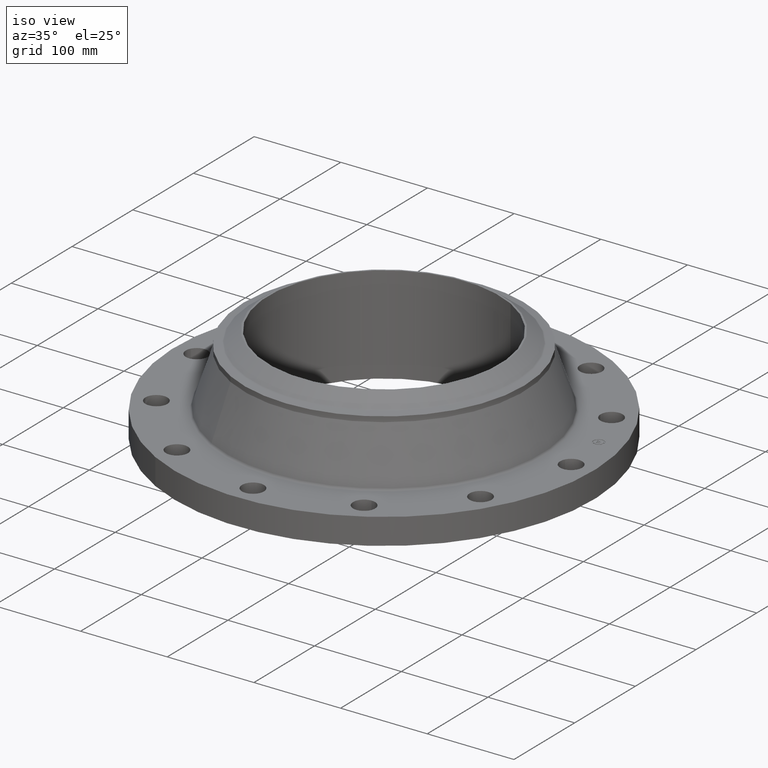
[diagram: clean part render]
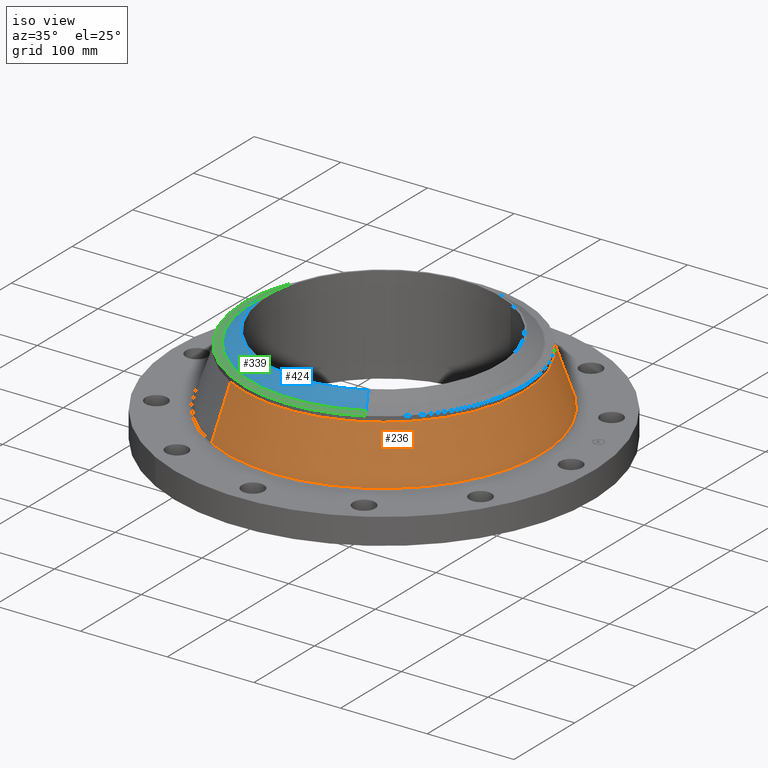
[diagram: same view with three faces highlighted in distinct colors, each labeled with its STEP entity id]
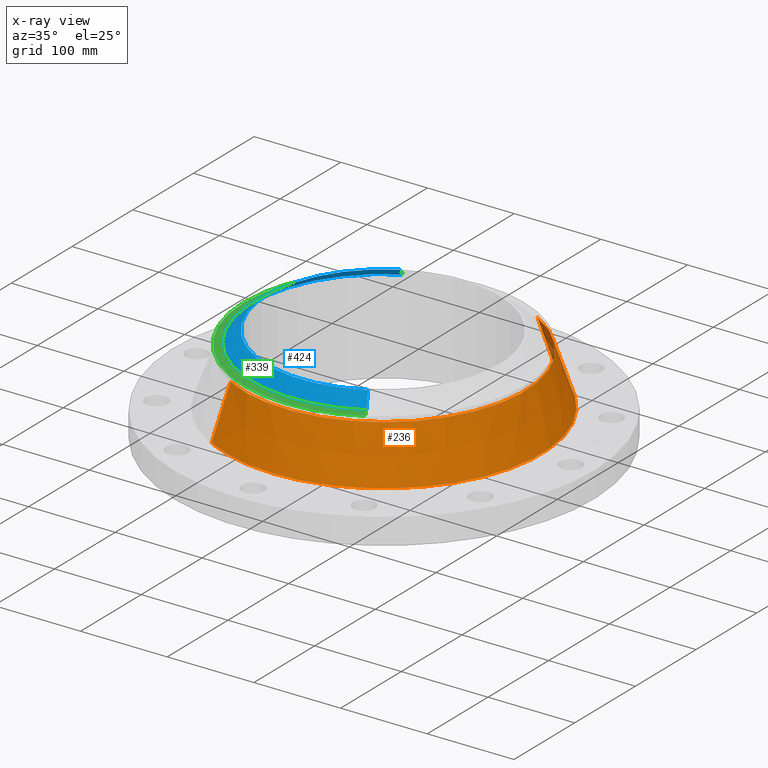
[diagram: x-ray of the same camera — body ghosted, the three highlighted faces saturated]
A machine part, iso view with three faces highlighted in distinct colors.
The next image is the same camera in x-ray (body ghosted, the three faces saturated) — at least one of them is partly hidden behind the body in this view.
Their STEP definitions:

[orange] entity #236 — the highlighted conical surface has half-angle 18.514 deg.
#172=AXIS2_PLACEMENT_3D('Circle Axis2P3D',#170,#171,$) ;
#209=AXIS2_PLACEMENT_3D('Cone Axis2P3D',#206,#207,#208) ;
#220=AXIS2_PLACEMENT_3D('Circle Axis2P3D',#218,#219,$) ;
#167=CARTESIAN_POINT('Vertex',(3.43392160501,6.2857513353,1.27189482998)) ;
#170=CARTESIAN_POINT('Axis2P3D Location',(0.,0.,1.27189482998)) ;
#174=CARTESIAN_POINT('Vertex',(-3.43392160501,-6.2857513353,1.27189482998)) ;
#206=CARTESIAN_POINT('Axis2P3D Location',(0.,0.,3.62374450254)) ;
#211=CARTESIAN_POINT('Line Origine',(3.24512970681,5.94017008369,2.44781966626)) ;
#215=CARTESIAN_POINT('Vertex',(3.05633780861,5.59458883207,3.62374450254)) ;
#218=CARTESIAN_POINT('Axis2P3D Location',(0.,0.,3.62374450254)) ;
#222=CARTESIAN_POINT('Vertex',(-3.05633780861,-5.59458883207,3.62374450254)) ;
#225=CARTESIAN_POINT('Line Origine',(-3.24512970681,-5.94017008369,2.44781966626)) ;
#171=DIRECTION('Axis2P3D Direction',(0.,0.,-0.0393700787402)) ;
#207=DIRECTION('Axis2P3D Direction',(0.,0.,-0.0393700787402)) ;
#208=DIRECTION('Axis2P3D XDirection',(-0.0188750212049,-0.0345504945626,0.)) ;
#212=DIRECTION('Vector Direction',(0.0059936324354,0.0109712705815,-0.0373324348531)) ;
#219=DIRECTION('Axis2P3D Direction',(0.,0.,-0.0393700787402)) ;
#226=DIRECTION('Vector Direction',(-0.0059936324354,-0.0109712705815,-0.0373324348531)) ;
#213=VECTOR('Line Direction',#212,0.0393700787402) ;
#227=VECTOR('Line Direction',#226,0.0393700787402) ;
#231=ORIENTED_EDGE('',*,*,#176,.F.) ;
#232=ORIENTED_EDGE('',*,*,#217,.T.) ;
#233=ORIENTED_EDGE('',*,*,#224,.T.) ;
#234=ORIENTED_EDGE('',*,*,#229,.F.) ;
#236=ADVANCED_FACE('PartBody',(#235),#210,.T.) ;
#173=CIRCLE('generated circle',#172,7.16257547524) ;
#221=CIRCLE('generated circle',#220,6.37500000003) ;
#210=CONICAL_SURFACE('Cone',#209,6.37500000003,0.323137341784) ;
#176=EDGE_CURVE('',#168,#175,#173,.T.) ;
#217=EDGE_CURVE('',#168,#216,#214,.F.) ;
#224=EDGE_CURVE('',#216,#223,#221,.T.) ;
#229=EDGE_CURVE('',#175,#223,#228,.F.) ;
#230=EDGE_LOOP('',(#231,#232,#233,#234)) ;
#235=FACE_OUTER_BOUND('',#230,.T.) ;
#214=LINE('Line',#211,#213) ;
#228=LINE('Line',#225,#227) ;
#168=VERTEX_POINT('',#167) ;
#175=VERTEX_POINT('',#174) ;
#216=VERTEX_POINT('',#215) ;
#223=VERTEX_POINT('',#222) ;

[blue] entity #424 — the highlighted conical surface has half-angle 52.5 deg.
#343=AXIS2_PLACEMENT_3D('Cone Axis2P3D',#340,#341,#342) ;
#387=AXIS2_PLACEMENT_3D('Circle Axis2P3D',#385,#386,$) ;
#415=AXIS2_PLACEMENT_3D('Circle Axis2P3D',#413,#414,$) ;
#340=CARTESIAN_POINT('Axis2P3D Location',(0.,0.,4.44000000002)) ;
#349=CARTESIAN_POINT('Vertex',(2.55473412009,-4.67640943907,4.44000000002)) ;
#351=CARTESIAN_POINT('Vertex',(-2.55473412009,4.67640943907,4.44000000002)) ;
#354=CARTESIAN_POINT('Line Origine',(2.70967542264,-4.96002759097,4.19201437258)) ;
#358=CARTESIAN_POINT('Vertex',(2.86461672519,-5.24364574288,3.94402874515)) ;
#365=CARTESIAN_POINT('Vertex',(-2.86461672519,5.24364574288,3.94402874515)) ;
#368=CARTESIAN_POINT('Line Origine',(-2.70967542264,4.96002759097,4.19201437258)) ;
#385=CARTESIAN_POINT('Axis2P3D Location',(0.,0.,4.44000000002)) ;
#413=CARTESIAN_POINT('Axis2P3D Location',(0.,0.,3.94402874515)) ;
#341=DIRECTION('Axis2P3D Direction',(-0.,-0.,-0.0393700787402)) ;
#342=DIRECTION('Axis2P3D XDirection',(0.0188750212049,-0.0345504945626,0.)) ;
#355=DIRECTION('Vector Direction',(0.014974561121,-0.02741075027,-0.023966985394)) ;
#369=DIRECTION('Vector Direction',(-0.014974561121,0.02741075027,-0.023966985394)) ;
#386=DIRECTION('Axis2P3D Direction',(0.,0.,-0.0393700787402)) ;
#414=DIRECTION('Axis2P3D Direction',(0.,0.,-0.0393700787402)) ;
#356=VECTOR('Line Direction',#355,0.0393700787402) ;
#370=VECTOR('Line Direction',#369,0.0393700787402) ;
#419=ORIENTED_EDGE('',*,*,#389,.F.) ;
#420=ORIENTED_EDGE('',*,*,#372,.T.) ;
#421=ORIENTED_EDGE('',*,*,#417,.T.) ;
#422=ORIENTED_EDGE('',*,*,#360,.F.) ;
#424=ADVANCED_FACE('PartBody',(#423),#344,.T.) ;
#388=CIRCLE('generated circle',#387,5.3287401575) ;
#416=CIRCLE('generated circle',#415,5.97510248105) ;
#344=CONICAL_SURFACE('Cone',#343,5.3287401575,0.916297857297) ;
#360=EDGE_CURVE('',#350,#359,#357,.T.) ;
#372=EDGE_CURVE('',#352,#366,#371,.T.) ;
#389=EDGE_CURVE('',#352,#350,#388,.F.) ;
#417=EDGE_CURVE('',#366,#359,#416,.F.) ;
#418=EDGE_LOOP('',(#419,#420,#421,#422)) ;
#423=FACE_OUTER_BOUND('',#418,.T.) ;
#357=LINE('Line',#354,#356) ;
#371=LINE('Line',#368,#370) ;
#350=VERTEX_POINT('',#349) ;
#352=VERTEX_POINT('',#351) ;
#359=VERTEX_POINT('',#358) ;
#366=VERTEX_POINT('',#365) ;

[green] entity #339 — the highlighted conical surface has half-angle 80 deg.
#277=AXIS2_PLACEMENT_3D('Circle Axis2P3D',#275,#276,$) ;
#290=AXIS2_PLACEMENT_3D('Circle Axis2P3D',#288,#289,$) ;
#311=AXIS2_PLACEMENT_3D('Cone Axis2P3D',#308,#309,#310) ;
#322=AXIS2_PLACEMENT_3D('Circle Axis2P3D',#320,#321,$) ;
#258=CARTESIAN_POINT('Vertex',(-3.05633780861,-5.59458883207,3.85996497498)) ;
#272=CARTESIAN_POINT('Vertex',(3.05633780861,-5.59458883207,3.85996497498)) ;
#275=CARTESIAN_POINT('Axis2P3D Location',(0.,0.,3.85996497498)) ;
#288=CARTESIAN_POINT('Axis2P3D Location',(0.,0.,3.85996497498)) ;
#292=CARTESIAN_POINT('Vertex',(-3.05633780861,5.59458883207,3.85996497498)) ;
#308=CARTESIAN_POINT('Axis2P3D Location',(0.,0.,3.92141601924)) ;
#313=CARTESIAN_POINT('Line Origine',(2.97279642467,-5.44166735451,3.89069049711)) ;
#317=CARTESIAN_POINT('Vertex',(2.88925504073,-5.28874587695,3.92141601924)) ;
#320=CARTESIAN_POINT('Axis2P3D Location',(0.,0.,3.92141601924)) ;
#324=CARTESIAN_POINT('Vertex',(-2.88925504073,5.28874587695,3.92141601924)) ;
#327=CARTESIAN_POINT('Line Origine',(-2.97279642467,5.44166735451,3.89069049711)) ;
#276=DIRECTION('Axis2P3D Direction',(0.,0.,-0.0393700787402)) ;
#289=DIRECTION('Axis2P3D Direction',(0.,0.,-0.0393700787402)) ;
#309=DIRECTION('Axis2P3D Direction',(-0.,-0.,-0.0393700787402)) ;
#310=DIRECTION('Axis2P3D XDirection',(-0.0188750212049,0.0345504945626,0.)) ;
#314=DIRECTION('Vector Direction',(0.0185882672208,-0.0340255949157,-0.00683654242783)) ;
#321=DIRECTION('Axis2P3D Direction',(0.,0.,-0.0393700787402)) ;
#328=DIRECTION('Vector Direction',(-0.0185882672208,0.0340255949157,-0.00683654242783)) ;
#315=VECTOR('Line Direction',#314,0.0393700787402) ;
#329=VECTOR('Line Direction',#328,0.0393700787402) ;
#333=ORIENTED_EDGE('',*,*,#319,.F.) ;
#334=ORIENTED_EDGE('',*,*,#326,.F.) ;
#335=ORIENTED_EDGE('',*,*,#331,.T.) ;
#336=ORIENTED_EDGE('',*,*,#294,.T.) ;
#337=ORIENTED_EDGE('',*,*,#279,.F.) ;
#339=ADVANCED_FACE('PartBody',(#338),#312,.T.) ;
#278=CIRCLE('generated circle',#277,6.37500000003) ;
#291=CIRCLE('generated circle',#290,6.37500000003) ;
#323=CIRCLE('generated circle',#322,6.02649380995) ;
#312=CONICAL_SURFACE('Cone',#311,6.02649380995,1.3962634016) ;
#279=EDGE_CURVE('',#273,#259,#278,.T.) ;
#294=EDGE_CURVE('',#293,#259,#291,.F.) ;
#319=EDGE_CURVE('',#318,#273,#316,.T.) ;
#326=EDGE_CURVE('',#325,#318,#323,.F.) ;
#331=EDGE_CURVE('',#325,#293,#330,.T.) ;
#332=EDGE_LOOP('',(#333,#334,#335,#336,#337)) ;
#338=FACE_OUTER_BOUND('',#332,.T.) ;
#316=LINE('Line',#313,#315) ;
#330=LINE('Line',#327,#329) ;
#259=VERTEX_POINT('',#258) ;
#273=VERTEX_POINT('',#272) ;
#293=VERTEX_POINT('',#292) ;
#318=VERTEX_POINT('',#317) ;
#325=VERTEX_POINT('',#324) ;